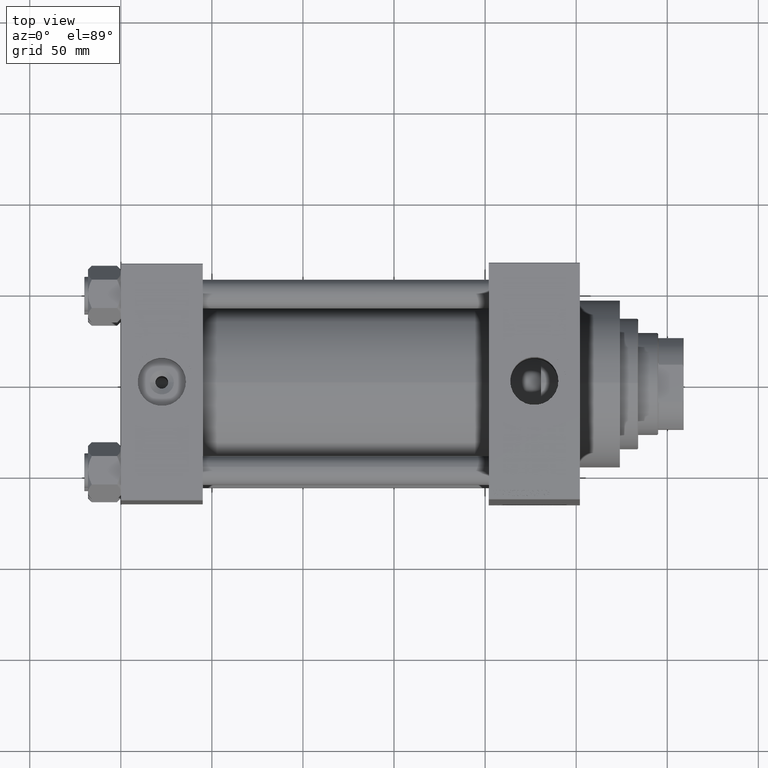
[diagram: clean part render]
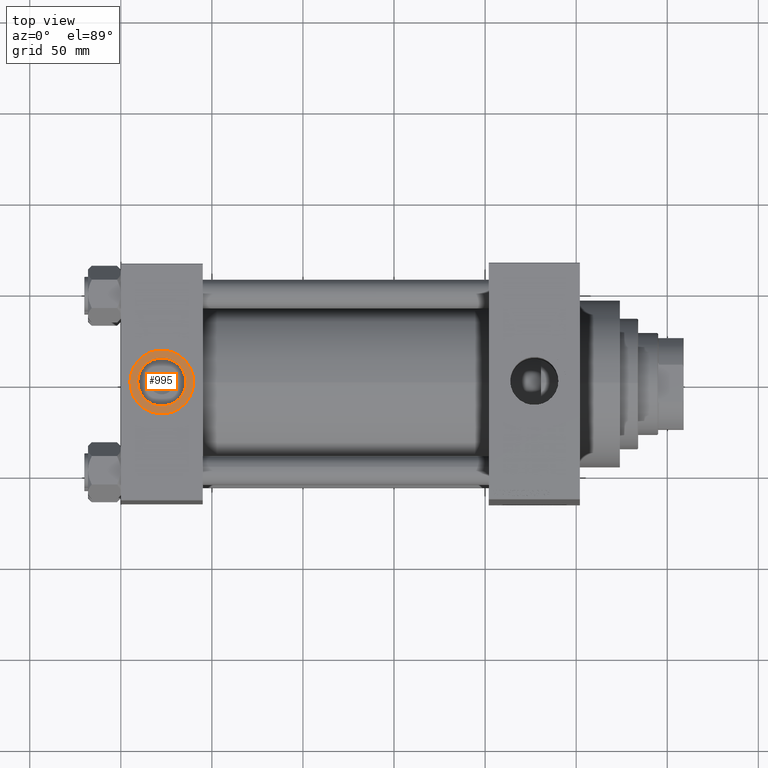
[diagram: same view with one face highlighted and labeled with its STEP entity id]
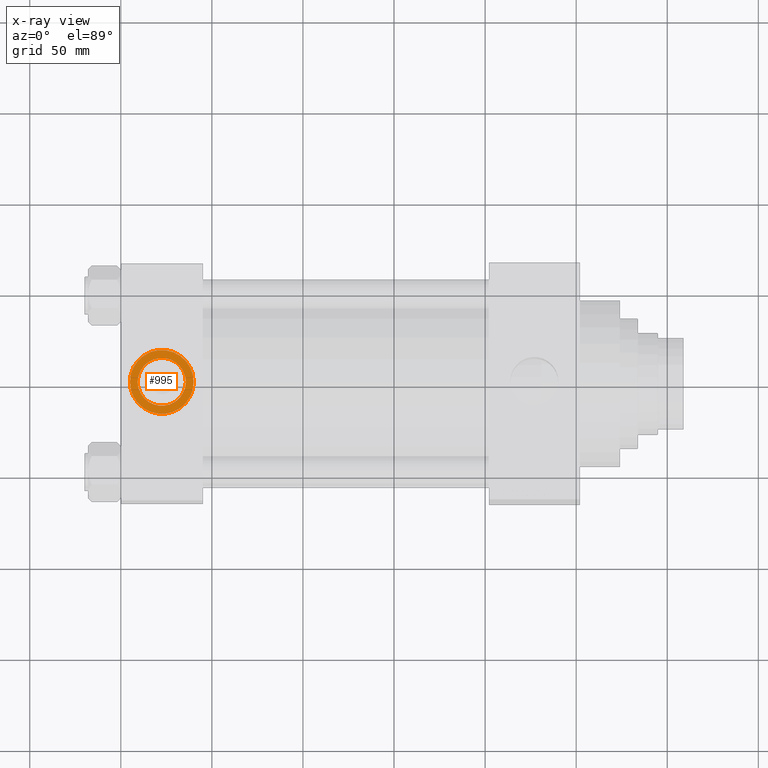
[diagram: x-ray of the same camera — body ghosted, the highlighted face saturated]
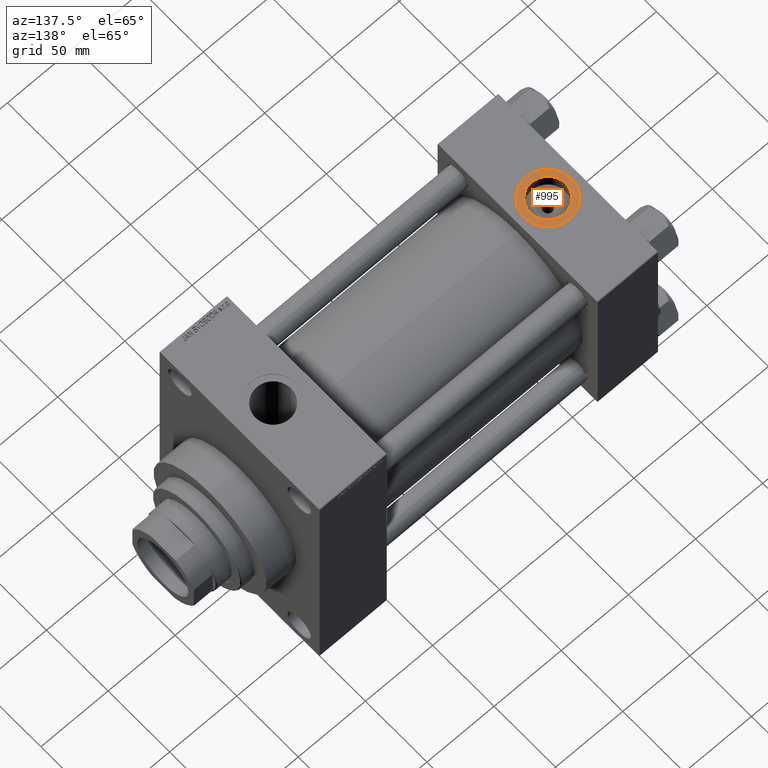
[diagram: same view with one face highlighted and labeled with its STEP entity id]
A machine part, top view. The second image highlights one B-rep face of the part: STEP entity #995.
The next image is the same camera in x-ray: the body ghosted, the highlighted face saturated — about 0% of this face is hidden behind the body in this view.
A second angle (auxiliary view) of the same face is appended — the face is thin or edge-on in the first view.
In plain terms, the highlighted planar face has unit normal (0, 0, 1).
Its self-contained STEP definition (entity closure, byte-faithful):
#875 = AXIS2_PLACEMENT_3D ( 'NONE', #26346, #33102, #29722 ) ;
#995 = ADVANCED_FACE ( 'NONE', ( #37878, #34266 ), #1189, .T. ) ;
#1189 = PLANE ( 'NONE',  #45698 ) ;
#2791 = CARTESIAN_POINT ( 'NONE',  ( 40.00000000000000000, -8.673617379884035472E-15, 64.79999999999999716 ) ) ;
#3992 = VERTEX_POINT ( 'NONE', #45971 ) ;
#6029 = ORIENTED_EDGE ( 'NONE', *, *, #36575, .F. ) ;
#8728 = CIRCLE ( 'NONE', #27988, 17.50000000000000000 ) ;
#9662 = DIRECTION ( 'NONE',  ( 1.000000000000000000, 0.000000000000000000, 0.000000000000000000 ) ) ;
#9849 = DIRECTION ( 'NONE',  ( 1.000000000000000000, 0.000000000000000000, -0.000000000000000000 ) ) ;
#10339 = DIRECTION ( 'NONE',  ( 1.000000000000000000, 0.000000000000000000, 0.000000000000000000 ) ) ;
#11871 = ORIENTED_EDGE ( 'NONE', *, *, #36125, .T. ) ;
#13847 = VERTEX_POINT ( 'NONE', #2791 ) ;
#14436 = CARTESIAN_POINT ( 'NONE',  ( 22.50000000000000000, -8.673617379884035472E-15, 64.79999999999999716 ) ) ;
#16956 = EDGE_LOOP ( 'NONE', ( #6029, #45113 ) ) ;
#17386 = CARTESIAN_POINT ( 'NONE',  ( 22.50000000000000000, -8.673617379884035472E-15, 64.79999999999999716 ) ) ;
#18156 = AXIS2_PLACEMENT_3D ( 'NONE', #44342, #37090, #33722 ) ;
#19780 = CIRCLE ( 'NONE', #42128, 13.22000000000000242 ) ;
#20781 = DIRECTION ( 'NONE',  ( 0.000000000000000000, 0.000000000000000000, 1.000000000000000000 ) ) ;
#21664 = CIRCLE ( 'NONE', #875, 13.22000000000000242 ) ;
#23407 = CARTESIAN_POINT ( 'NONE',  ( 22.50000000000000000, -8.673617379884035472E-15, 64.79999999999999716 ) ) ;
#24647 = VERTEX_POINT ( 'NONE', #45711 ) ;
#25756 = DIRECTION ( 'NONE',  ( 0.000000000000000000, 0.000000000000000000, 1.000000000000000000 ) ) ;
#25806 = EDGE_CURVE ( 'NONE', #35455, #24647, #21664, .T. ) ;
#26346 = CARTESIAN_POINT ( 'NONE',  ( 22.50000000000000000, -8.673617379884035472E-15, 64.79999999999999716 ) ) ;
#26347 = CARTESIAN_POINT ( 'NONE',  ( 9.279999999999994031, -7.054634311411234321E-15, 64.79999999999999716 ) ) ;
#26631 = EDGE_LOOP ( 'NONE', ( #11871, #42331 ) ) ;
#27988 = AXIS2_PLACEMENT_3D ( 'NONE', #17386, #20781, #9662 ) ;
#29635 = EDGE_CURVE ( 'NONE', #3992, #13847, #8728, .T. ) ;
#29722 = DIRECTION ( 'NONE',  ( 1.000000000000000000, 0.000000000000000000, 0.000000000000000000 ) ) ;
#33102 = DIRECTION ( 'NONE',  ( 0.000000000000000000, 0.000000000000000000, 1.000000000000000000 ) ) ;
#33722 = DIRECTION ( 'NONE',  ( 1.000000000000000000, 0.000000000000000000, 0.000000000000000000 ) ) ;
#34266 = FACE_OUTER_BOUND ( 'NONE', #26631, .T. ) ;
#35455 = VERTEX_POINT ( 'NONE', #26347 ) ;
#35900 = CIRCLE ( 'NONE', #18156, 17.50000000000000000 ) ;
#36125 = EDGE_CURVE ( 'NONE', #13847, #3992, #35900, .T. ) ;
#36575 = EDGE_CURVE ( 'NONE', #24647, #35455, #19780, .T. ) ;
#37090 = DIRECTION ( 'NONE',  ( 0.000000000000000000, 0.000000000000000000, 1.000000000000000000 ) ) ;
#37878 = FACE_BOUND ( 'NONE', #16956, .T. ) ;
#42128 = AXIS2_PLACEMENT_3D ( 'NONE', #14436, #25756, #10339 ) ;
#42331 = ORIENTED_EDGE ( 'NONE', *, *, #29635, .T. ) ;
#44342 = CARTESIAN_POINT ( 'NONE',  ( 22.50000000000000000, -8.673617379884035472E-15, 64.79999999999999716 ) ) ;
#45113 = ORIENTED_EDGE ( 'NONE', *, *, #25806, .F. ) ;
#45698 = AXIS2_PLACEMENT_3D ( 'NONE', #23407, #46781, #9849 ) ;
#45711 = CARTESIAN_POINT ( 'NONE',  ( 35.71999999999999886, -8.673617379884035472E-15, 64.79999999999999716 ) ) ;
#45971 = CARTESIAN_POINT ( 'NONE',  ( 4.999999999999997335, -6.530485481376167224E-15, 64.79999999999999716 ) ) ;
#46781 = DIRECTION ( 'NONE',  ( 0.000000000000000000, 0.000000000000000000, 1.000000000000000000 ) ) ;